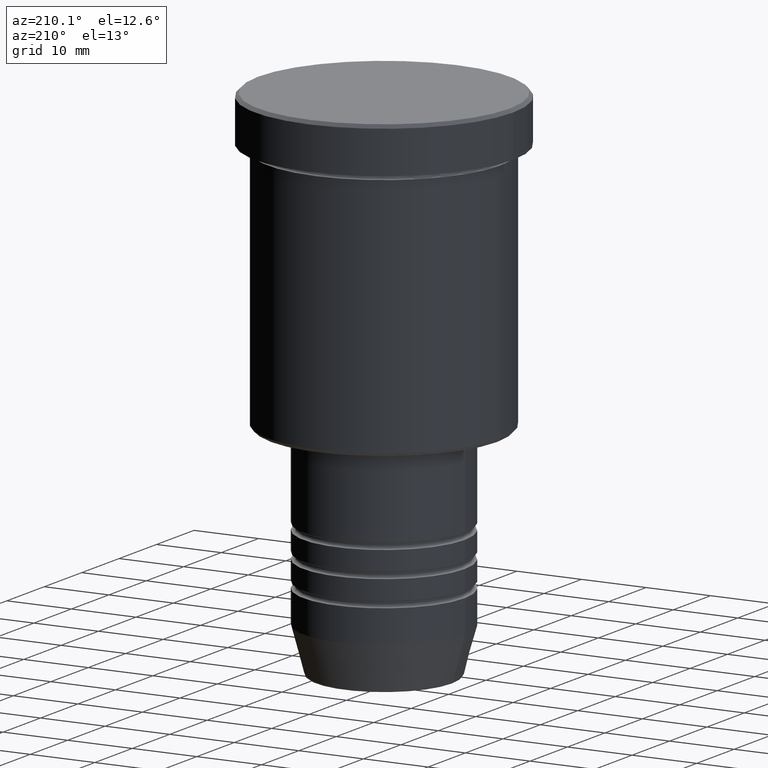
[diagram: clean part render]
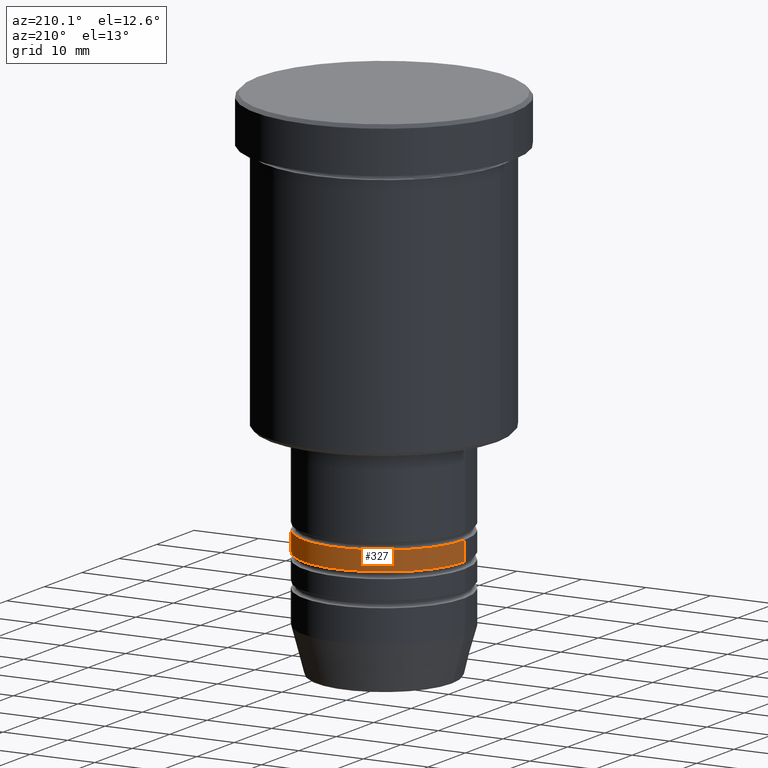
[diagram: same view with one face highlighted and labeled with its STEP entity id]
A machine part, auxiliary view. The second image highlights one B-rep face of the part: STEP entity #327.
In plain terms, the highlighted cylindrical surface (partial cylindrical patch) has radius 12.5 mm, axis along (-0, -0, 1).
Its self-contained STEP definition (entity closure, byte-faithful):
#3 = VECTOR ( 'NONE', #520, 1000.000000000000000 ) ;
#56 = DIRECTION ( 'NONE',  ( -0.000000000000000000, -0.000000000000000000, 1.000000000000000000 ) ) ;
#91 = VERTEX_POINT ( 'NONE', #587 ) ;
#194 = DIRECTION ( 'NONE',  ( -0.000000000000000000, -0.000000000000000000, 1.000000000000000000 ) ) ;
#238 = AXIS2_PLACEMENT_3D ( 'NONE', #553, #194, #1082 ) ;
#242 = CARTESIAN_POINT ( 'NONE',  ( -12.50000000000000178, 1.530808498934191719E-15, 0.000000000000000000 ) ) ;
#303 = CARTESIAN_POINT ( 'NONE',  ( 0.000000000000000000, 0.000000000000000000, -60.00000000000000711 ) ) ;
#327 = ADVANCED_FACE ( 'NONE', ( #784 ), #337, .T. ) ;
#337 = CYLINDRICAL_SURFACE ( 'NONE', #1057, 12.50000000000000178 ) ;
#344 = EDGE_CURVE ( 'NONE', #91, #1105, #349, .T. ) ;
#349 = LINE ( 'NONE', #242, #3 ) ;
#396 = ORIENTED_EDGE ( 'NONE', *, *, #1078, .F. ) ;
#424 = CARTESIAN_POINT ( 'NONE',  ( 0.000000000000000000, 0.000000000000000000, 0.000000000000000000 ) ) ;
#439 = CARTESIAN_POINT ( 'NONE',  ( 12.50000000000000178, 0.000000000000000000, 0.000000000000000000 ) ) ;
#504 = EDGE_LOOP ( 'NONE', ( #973, #1123, #396, #1076 ) ) ;
#513 = AXIS2_PLACEMENT_3D ( 'NONE', #303, #772, #765 ) ;
#520 = DIRECTION ( 'NONE',  ( -0.000000000000000000, -0.000000000000000000, 1.000000000000000000 ) ) ;
#553 = CARTESIAN_POINT ( 'NONE',  ( 0.000000000000000000, 0.000000000000000000, -63.00000000000000000 ) ) ;
#576 = CARTESIAN_POINT ( 'NONE',  ( 12.50000000000000000, 0.000000000000000000, -60.00000000000000711 ) ) ;
#587 = CARTESIAN_POINT ( 'NONE',  ( -12.50000000000000533, 1.530808498934192113E-15, -63.00000000000000000 ) ) ;
#654 = CIRCLE ( 'NONE', #513, 12.50000000000000000 ) ;
#697 = DIRECTION ( 'NONE',  ( -0.000000000000000000, -0.000000000000000000, 1.000000000000000000 ) ) ;
#765 = DIRECTION ( 'NONE',  ( 1.000000000000000000, 0.000000000000000000, 0.000000000000000000 ) ) ;
#772 = DIRECTION ( 'NONE',  ( -0.000000000000000000, -0.000000000000000000, 1.000000000000000000 ) ) ;
#784 = FACE_OUTER_BOUND ( 'NONE', #504, .T. ) ;
#800 = EDGE_CURVE ( 'NONE', #816, #1063, #980, .T. ) ;
#816 = VERTEX_POINT ( 'NONE', #1164 ) ;
#924 = EDGE_CURVE ( 'NONE', #816, #91, #1015, .T. ) ;
#973 = ORIENTED_EDGE ( 'NONE', *, *, #924, .T. ) ;
#980 = LINE ( 'NONE', #439, #1035 ) ;
#1015 = CIRCLE ( 'NONE', #238, 12.50000000000000355 ) ;
#1022 = CARTESIAN_POINT ( 'NONE',  ( -12.50000000000000000, 1.530808498934191719E-15, -60.00000000000000711 ) ) ;
#1035 = VECTOR ( 'NONE', #56, 1000.000000000000000 ) ;
#1057 = AXIS2_PLACEMENT_3D ( 'NONE', #424, #697, #1065 ) ;
#1063 = VERTEX_POINT ( 'NONE', #576 ) ;
#1065 = DIRECTION ( 'NONE',  ( 1.000000000000000000, 0.000000000000000000, 0.000000000000000000 ) ) ;
#1076 = ORIENTED_EDGE ( 'NONE', *, *, #800, .F. ) ;
#1078 = EDGE_CURVE ( 'NONE', #1063, #1105, #654, .T. ) ;
#1082 = DIRECTION ( 'NONE',  ( 1.000000000000000000, 0.000000000000000000, 0.000000000000000000 ) ) ;
#1105 = VERTEX_POINT ( 'NONE', #1022 ) ;
#1123 = ORIENTED_EDGE ( 'NONE', *, *, #344, .T. ) ;
#1164 = CARTESIAN_POINT ( 'NONE',  ( 12.50000000000000355, 0.000000000000000000, -63.00000000000000000 ) ) ;